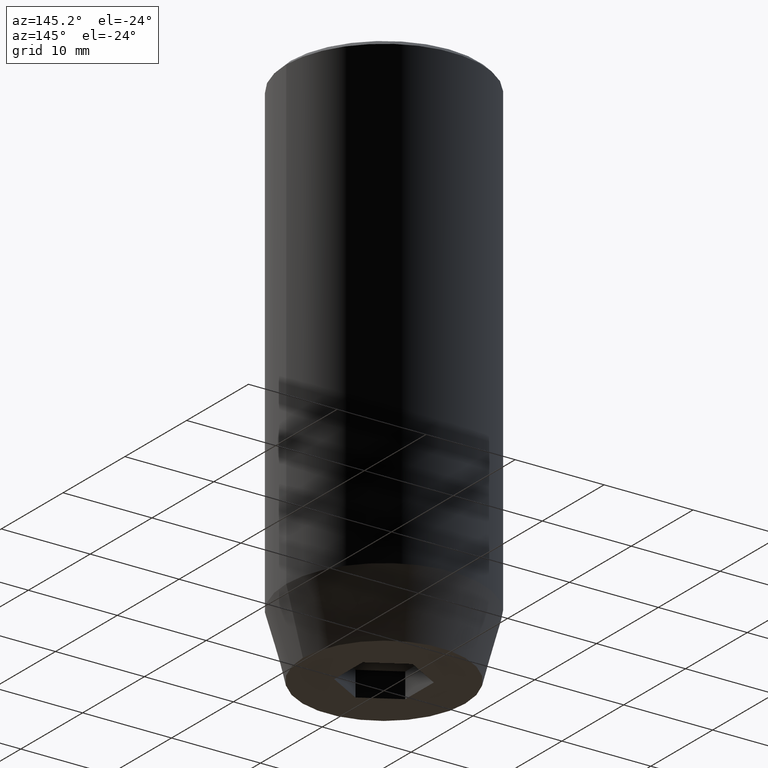
[diagram: clean part render]
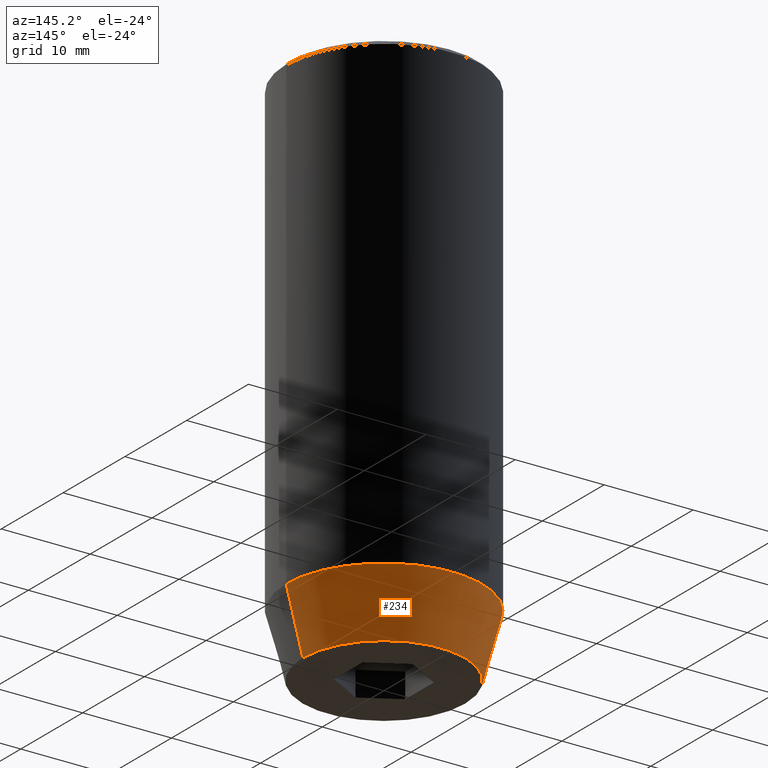
[diagram: same view with one face highlighted and labeled with its STEP entity id]
A machine part, auxiliary view. The second image highlights one B-rep face of the part: STEP entity #234.
In plain terms, the highlighted conical surface has half-angle 15 deg.
Its self-contained STEP definition (entity closure, byte-faithful):
#2 = LINE ( 'NONE', #148, #587 ) ;
#28 = ORIENTED_EDGE ( 'NONE', *, *, #292, .T. ) ;
#33 = LINE ( 'NONE', #580, #484 ) ;
#74 = DIRECTION ( 'NONE',  ( 1.000000000000000000, 0.000000000000000000, 0.000000000000000000 ) ) ;
#87 = AXIS2_PLACEMENT_3D ( 'NONE', #215, #365, #74 ) ;
#90 = CARTESIAN_POINT ( 'NONE',  ( -9.124355652982135467, 1.232261386766375704E-15, -60.00000000000000000 ) ) ;
#117 = AXIS2_PLACEMENT_3D ( 'NONE', #321, #273, #122 ) ;
#122 = DIRECTION ( 'NONE',  ( 1.000000000000000000, 0.000000000000000000, 0.000000000000000000 ) ) ;
#131 = CARTESIAN_POINT ( 'NONE',  ( 11.00000000000000000, 0.000000000000000000, -53.00000000000000000 ) ) ;
#148 = CARTESIAN_POINT ( 'NONE',  ( 11.00000000000000000, 0.000000000000000000, -53.00000000000000000 ) ) ;
#215 = CARTESIAN_POINT ( 'NONE',  ( 0.000000000000000000, 0.000000000000000000, -53.00000000000000000 ) ) ;
#219 = ORIENTED_EDGE ( 'NONE', *, *, #305, .F. ) ;
#232 = VERTEX_POINT ( 'NONE', #262 ) ;
#233 = VERTEX_POINT ( 'NONE', #131 ) ;
#234 = ADVANCED_FACE ( 'NONE', ( #357 ), #380, .T. ) ;
#235 = CARTESIAN_POINT ( 'NONE',  ( 0.000000000000000000, 0.000000000000000000, -60.00000000000000000 ) ) ;
#236 = ORIENTED_EDGE ( 'NONE', *, *, #405, .F. ) ;
#245 = ORIENTED_EDGE ( 'NONE', *, *, #419, .T. ) ;
#262 = CARTESIAN_POINT ( 'NONE',  ( 9.124355652982135467, 0.000000000000000000, -60.00000000000000000 ) ) ;
#273 = DIRECTION ( 'NONE',  ( -0.000000000000000000, -0.000000000000000000, 1.000000000000000000 ) ) ;
#288 = AXIS2_PLACEMENT_3D ( 'NONE', #235, #338, #555 ) ;
#292 = EDGE_CURVE ( 'NONE', #408, #414, #33, .T. ) ;
#305 = EDGE_CURVE ( 'NONE', #233, #414, #349, .T. ) ;
#314 = DIRECTION ( 'NONE',  ( -0.2588190451025213501, 3.169619151431772337E-17, 0.9659258262890680902 ) ) ;
#321 = CARTESIAN_POINT ( 'NONE',  ( 0.000000000000000000, 0.000000000000000000, -53.00000000000000000 ) ) ;
#337 = CARTESIAN_POINT ( 'NONE',  ( -11.00000000000000000, 1.347111479062088405E-15, -53.00000000000000000 ) ) ;
#338 = DIRECTION ( 'NONE',  ( -0.000000000000000000, -0.000000000000000000, 1.000000000000000000 ) ) ;
#343 = CIRCLE ( 'NONE', #288, 9.124355652982135467 ) ;
#349 = CIRCLE ( 'NONE', #87, 11.00000000000000000 ) ;
#357 = FACE_OUTER_BOUND ( 'NONE', #379, .T. ) ;
#365 = DIRECTION ( 'NONE',  ( -0.000000000000000000, -0.000000000000000000, 1.000000000000000000 ) ) ;
#379 = EDGE_LOOP ( 'NONE', ( #245, #28, #219, #236 ) ) ;
#380 = CONICAL_SURFACE ( 'NONE', #117, 11.00000000000000000, 0.2617993877991500740 ) ;
#405 = EDGE_CURVE ( 'NONE', #232, #233, #2, .T. ) ;
#408 = VERTEX_POINT ( 'NONE', #90 ) ;
#414 = VERTEX_POINT ( 'NONE', #337 ) ;
#419 = EDGE_CURVE ( 'NONE', #232, #408, #343, .T. ) ;
#484 = VECTOR ( 'NONE', #314, 1000.000000000000000 ) ;
#555 = DIRECTION ( 'NONE',  ( 1.000000000000000000, 0.000000000000000000, 0.000000000000000000 ) ) ;
#557 = DIRECTION ( 'NONE',  ( 0.2588190451025213501, 0.000000000000000000, 0.9659258262890680902 ) ) ;
#580 = CARTESIAN_POINT ( 'NONE',  ( -11.00000000000000000, 1.347111479062088405E-15, -53.00000000000000000 ) ) ;
#587 = VECTOR ( 'NONE', #557, 1000.000000000000000 ) ;